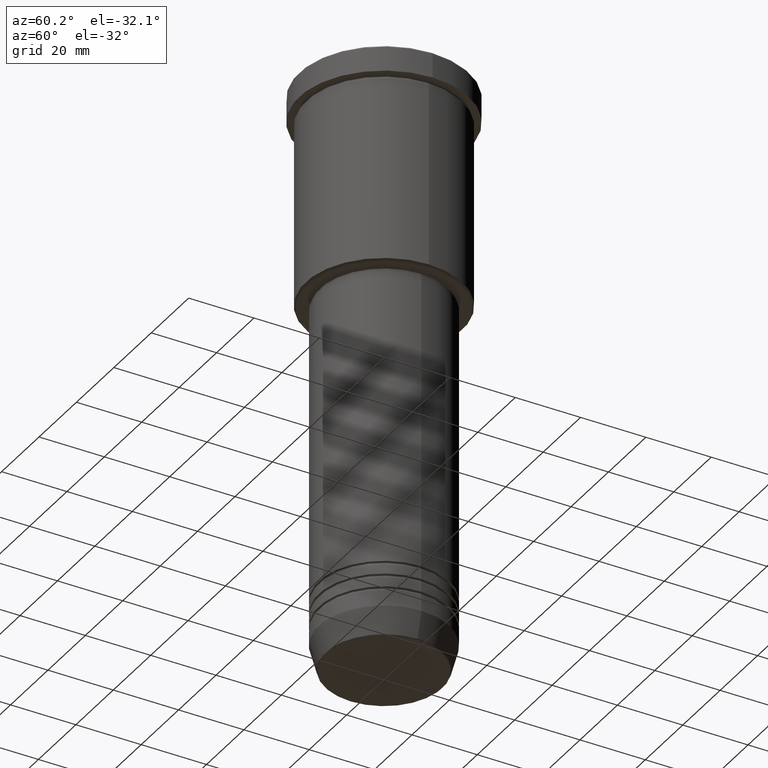
[diagram: clean part render]
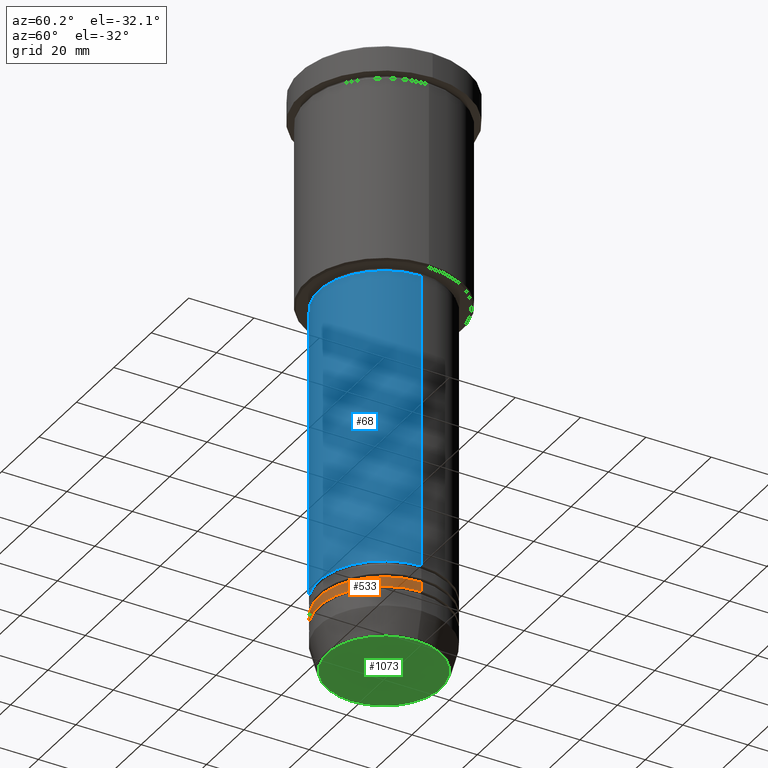
[diagram: same view with three faces highlighted in distinct colors, each labeled with its STEP entity id]
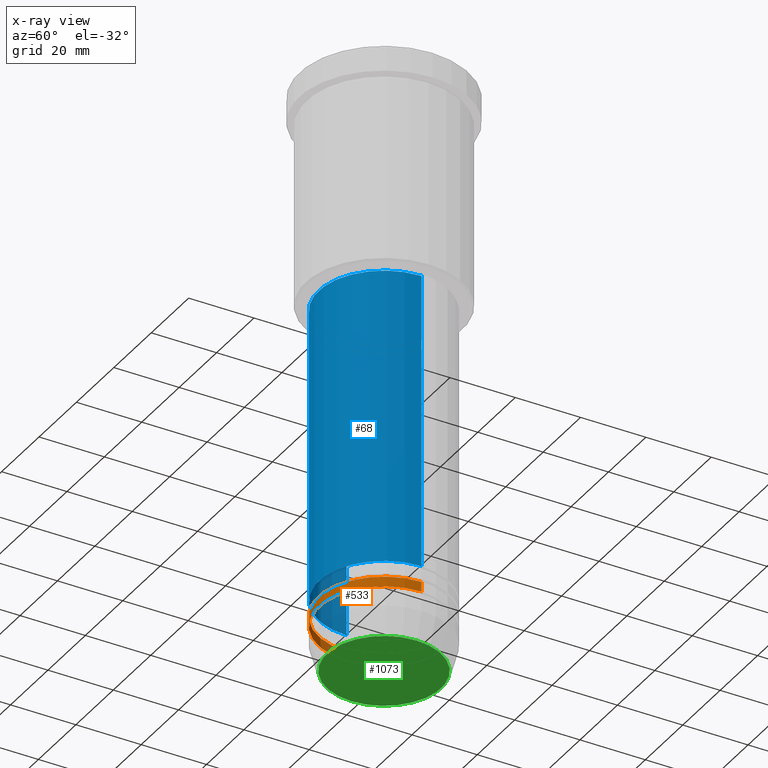
[diagram: x-ray of the same camera — body ghosted, the three highlighted faces saturated]
A machine part, auxiliary view with three faces highlighted in distinct colors.
The next image is the same camera in x-ray (body ghosted, the three faces saturated) — at least one of them is partly hidden behind the body in this view.
Their STEP definitions:

[orange] entity #533 — the highlighted cylindrical surface (partial cylindrical patch) has radius 20 mm, axis along (-0, -0, 1).
#3 = ORIENTED_EDGE ( 'NONE', *, *, #567, .F. ) ;
#98 = CARTESIAN_POINT ( 'NONE',  ( 0.000000000000000000, 0.000000000000000000, -163.0000000000000000 ) ) ;
#139 = CARTESIAN_POINT ( 'NONE',  ( 0.000000000000000000, 0.000000000000000000, 0.000000000000000000 ) ) ;
#147 = CIRCLE ( 'NONE', #1059, 20.00000000000000000 ) ;
#203 = FACE_OUTER_BOUND ( 'NONE', #371, .T. ) ;
#212 = LINE ( 'NONE', #413, #361 ) ;
#320 = DIRECTION ( 'NONE',  ( -0.000000000000000000, -0.000000000000000000, 1.000000000000000000 ) ) ;
#358 = AXIS2_PLACEMENT_3D ( 'NONE', #1021, #734, #571 ) ;
#361 = VECTOR ( 'NONE', #320, 1000.000000000000000 ) ;
#371 = EDGE_LOOP ( 'NONE', ( #1091, #1119, #748, #3 ) ) ;
#379 = EDGE_CURVE ( 'NONE', #749, #788, #529, .T. ) ;
#385 = DIRECTION ( 'NONE',  ( 1.000000000000000000, 0.000000000000000000, 0.000000000000000000 ) ) ;
#404 = EDGE_CURVE ( 'NONE', #749, #945, #557, .T. ) ;
#413 = CARTESIAN_POINT ( 'NONE',  ( 20.00000000000000355, 0.000000000000000000, 0.000000000000000000 ) ) ;
#429 = DIRECTION ( 'NONE',  ( -0.000000000000000000, -0.000000000000000000, 1.000000000000000000 ) ) ;
#489 = CARTESIAN_POINT ( 'NONE',  ( 20.00000000000000355, 0.000000000000000000, -165.9999999999999716 ) ) ;
#529 = LINE ( 'NONE', #980, #972 ) ;
#533 = ADVANCED_FACE ( 'NONE', ( #203 ), #1153, .T. ) ;
#557 = CIRCLE ( 'NONE', #358, 20.00000000000000355 ) ;
#567 = EDGE_CURVE ( 'NONE', #788, #866, #147, .T. ) ;
#571 = DIRECTION ( 'NONE',  ( 1.000000000000000000, 0.000000000000000000, 0.000000000000000000 ) ) ;
#583 = AXIS2_PLACEMENT_3D ( 'NONE', #139, #869, #385 ) ;
#726 = CARTESIAN_POINT ( 'NONE',  ( 20.00000000000000000, 0.000000000000000000, -163.0000000000000000 ) ) ;
#734 = DIRECTION ( 'NONE',  ( -0.000000000000000000, -0.000000000000000000, 1.000000000000000000 ) ) ;
#748 = ORIENTED_EDGE ( 'NONE', *, *, #995, .T. ) ;
#749 = VERTEX_POINT ( 'NONE', #790 ) ;
#788 = VERTEX_POINT ( 'NONE', #912 ) ;
#790 = CARTESIAN_POINT ( 'NONE',  ( -20.00000000000000355, 2.449293598294706907E-15, -165.9999999999999716 ) ) ;
#866 = VERTEX_POINT ( 'NONE', #726 ) ;
#869 = DIRECTION ( 'NONE',  ( -0.000000000000000000, -0.000000000000000000, 1.000000000000000000 ) ) ;
#890 = DIRECTION ( 'NONE',  ( -0.000000000000000000, -0.000000000000000000, 1.000000000000000000 ) ) ;
#912 = CARTESIAN_POINT ( 'NONE',  ( -20.00000000000000000, 2.449293598294706513E-15, -163.0000000000000000 ) ) ;
#945 = VERTEX_POINT ( 'NONE', #489 ) ;
#972 = VECTOR ( 'NONE', #890, 1000.000000000000000 ) ;
#980 = CARTESIAN_POINT ( 'NONE',  ( -20.00000000000000355, 2.449293598294706907E-15, 0.000000000000000000 ) ) ;
#995 = EDGE_CURVE ( 'NONE', #945, #866, #212, .T. ) ;
#1021 = CARTESIAN_POINT ( 'NONE',  ( 0.000000000000000000, 0.000000000000000000, -165.9999999999999716 ) ) ;
#1047 = DIRECTION ( 'NONE',  ( 1.000000000000000000, 0.000000000000000000, 0.000000000000000000 ) ) ;
#1059 = AXIS2_PLACEMENT_3D ( 'NONE', #98, #429, #1047 ) ;
#1091 = ORIENTED_EDGE ( 'NONE', *, *, #379, .F. ) ;
#1119 = ORIENTED_EDGE ( 'NONE', *, *, #404, .T. ) ;
#1153 = CYLINDRICAL_SURFACE ( 'NONE', #583, 20.00000000000000355 ) ;

[blue] entity #68 — the highlighted cylindrical surface (partial cylindrical patch) has radius 20 mm, axis along (-0, -0, 1).
#68 = ADVANCED_FACE ( 'NONE', ( #808 ), #553, .T. ) ;
#71 = DIRECTION ( 'NONE',  ( -0.000000000000000000, -0.000000000000000000, 1.000000000000000000 ) ) ;
#93 = DIRECTION ( 'NONE',  ( -0.000000000000000000, -0.000000000000000000, 1.000000000000000000 ) ) ;
#132 = VERTEX_POINT ( 'NONE', #410 ) ;
#153 = DIRECTION ( 'NONE',  ( -0.000000000000000000, -0.000000000000000000, 1.000000000000000000 ) ) ;
#155 = CARTESIAN_POINT ( 'NONE',  ( -20.00000000000000355, 2.449293598294706907E-15, 0.000000000000000000 ) ) ;
#178 = CARTESIAN_POINT ( 'NONE',  ( 0.000000000000000000, 0.000000000000000000, -158.0000000000000000 ) ) ;
#182 = ORIENTED_EDGE ( 'NONE', *, *, #1089, .F. ) ;
#194 = CARTESIAN_POINT ( 'NONE',  ( 20.00000000000000355, 0.000000000000000000, -158.0000000000000000 ) ) ;
#251 = EDGE_CURVE ( 'NONE', #524, #395, #252, .T. ) ;
#252 = CIRCLE ( 'NONE', #453, 20.00000000000000355 ) ;
#309 = ORIENTED_EDGE ( 'NONE', *, *, #676, .F. ) ;
#333 = LINE ( 'NONE', #155, #422 ) ;
#351 = CARTESIAN_POINT ( 'NONE',  ( 0.000000000000000000, 0.000000000000000000, -67.00000000000002842 ) ) ;
#378 = CIRCLE ( 'NONE', #542, 20.00000000000000355 ) ;
#395 = VERTEX_POINT ( 'NONE', #194 ) ;
#410 = CARTESIAN_POINT ( 'NONE',  ( -20.00000000000000355, 2.449293598294706907E-15, -67.00000000000002842 ) ) ;
#422 = VECTOR ( 'NONE', #153, 1000.000000000000000 ) ;
#440 = DIRECTION ( 'NONE',  ( 1.000000000000000000, 0.000000000000000000, 0.000000000000000000 ) ) ;
#453 = AXIS2_PLACEMENT_3D ( 'NONE', #178, #93, #543 ) ;
#465 = CARTESIAN_POINT ( 'NONE',  ( 20.00000000000000355, 0.000000000000000000, 0.000000000000000000 ) ) ;
#524 = VERTEX_POINT ( 'NONE', #849 ) ;
#542 = AXIS2_PLACEMENT_3D ( 'NONE', #351, #892, #609 ) ;
#543 = DIRECTION ( 'NONE',  ( 1.000000000000000000, 0.000000000000000000, 0.000000000000000000 ) ) ;
#553 = CYLINDRICAL_SURFACE ( 'NONE', #596, 20.00000000000000355 ) ;
#558 = LINE ( 'NONE', #465, #973 ) ;
#596 = AXIS2_PLACEMENT_3D ( 'NONE', #897, #71, #440 ) ;
#609 = DIRECTION ( 'NONE',  ( 1.000000000000000000, 0.000000000000000000, 0.000000000000000000 ) ) ;
#675 = ORIENTED_EDGE ( 'NONE', *, *, #251, .T. ) ;
#676 = EDGE_CURVE ( 'NONE', #132, #857, #378, .T. ) ;
#791 = EDGE_LOOP ( 'NONE', ( #182, #675, #1167, #309 ) ) ;
#807 = EDGE_CURVE ( 'NONE', #395, #857, #558, .T. ) ;
#808 = FACE_OUTER_BOUND ( 'NONE', #791, .T. ) ;
#849 = CARTESIAN_POINT ( 'NONE',  ( -20.00000000000000355, 2.449293598294706907E-15, -158.0000000000000000 ) ) ;
#857 = VERTEX_POINT ( 'NONE', #1107 ) ;
#892 = DIRECTION ( 'NONE',  ( -0.000000000000000000, -0.000000000000000000, 1.000000000000000000 ) ) ;
#897 = CARTESIAN_POINT ( 'NONE',  ( 0.000000000000000000, 0.000000000000000000, 0.000000000000000000 ) ) ;
#918 = DIRECTION ( 'NONE',  ( -0.000000000000000000, -0.000000000000000000, 1.000000000000000000 ) ) ;
#973 = VECTOR ( 'NONE', #918, 1000.000000000000000 ) ;
#1089 = EDGE_CURVE ( 'NONE', #524, #132, #333, .T. ) ;
#1107 = CARTESIAN_POINT ( 'NONE',  ( 20.00000000000000355, 0.000000000000000000, -67.00000000000002842 ) ) ;
#1167 = ORIENTED_EDGE ( 'NONE', *, *, #807, .T. ) ;

[green] entity #1073 — the highlighted planar face has unit normal (0, -0, 1).
#70 = AXIS2_PLACEMENT_3D ( 'NONE', #868, #136, #964 ) ;
#136 = DIRECTION ( 'NONE',  ( 0.000000000000000000, -0.000000000000000000, 1.000000000000000000 ) ) ;
#159 = ORIENTED_EDGE ( 'NONE', *, *, #308, .T. ) ;
#167 = CARTESIAN_POINT ( 'NONE',  ( 0.000000000000000000, 0.000000000000000000, -180.0000000000000000 ) ) ;
#233 = AXIS2_PLACEMENT_3D ( 'NONE', #986, #812, #255 ) ;
#255 = DIRECTION ( 'NONE',  ( 1.000000000000000000, 0.000000000000000000, 0.000000000000000000 ) ) ;
#289 = CARTESIAN_POINT ( 'NONE',  ( -17.47274296656154036, 2.169366823916868503E-15, -180.0000000000000000 ) ) ;
#308 = EDGE_CURVE ( 'NONE', #946, #504, #581, .T. ) ;
#469 = CARTESIAN_POINT ( 'NONE',  ( 17.47274296656154036, 0.000000000000000000, -180.0000000000000000 ) ) ;
#504 = VERTEX_POINT ( 'NONE', #469 ) ;
#505 = CIRCLE ( 'NONE', #683, 17.47274296656154036 ) ;
#548 = DIRECTION ( 'NONE',  ( 1.000000000000000000, 0.000000000000000000, 0.000000000000000000 ) ) ;
#581 = CIRCLE ( 'NONE', #233, 17.47274296656154036 ) ;
#601 = FACE_OUTER_BOUND ( 'NONE', #994, .T. ) ;
#683 = AXIS2_PLACEMENT_3D ( 'NONE', #167, #701, #548 ) ;
#701 = DIRECTION ( 'NONE',  ( 0.000000000000000000, 0.000000000000000000, -1.000000000000000000 ) ) ;
#744 = EDGE_CURVE ( 'NONE', #504, #946, #505, .T. ) ;
#812 = DIRECTION ( 'NONE',  ( 0.000000000000000000, 0.000000000000000000, -1.000000000000000000 ) ) ;
#868 = CARTESIAN_POINT ( 'NONE',  ( 0.000000000000000000, 0.000000000000000000, -180.0000000000000000 ) ) ;
#946 = VERTEX_POINT ( 'NONE', #289 ) ;
#958 = PLANE ( 'NONE',  #70 ) ;
#964 = DIRECTION ( 'NONE',  ( 1.000000000000000000, 0.000000000000000000, 0.000000000000000000 ) ) ;
#986 = CARTESIAN_POINT ( 'NONE',  ( 0.000000000000000000, 0.000000000000000000, -180.0000000000000000 ) ) ;
#994 = EDGE_LOOP ( 'NONE', ( #1161, #159 ) ) ;
#1073 = ADVANCED_FACE ( 'NONE', ( #601 ), #958, .F. ) ;
#1161 = ORIENTED_EDGE ( 'NONE', *, *, #744, .T. ) ;